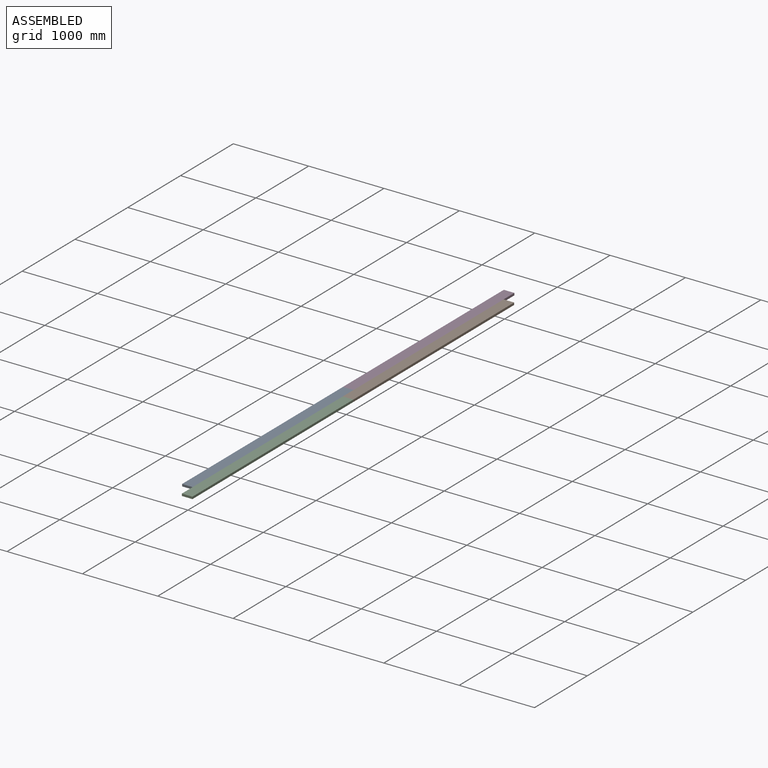
[diagram: assembled view]
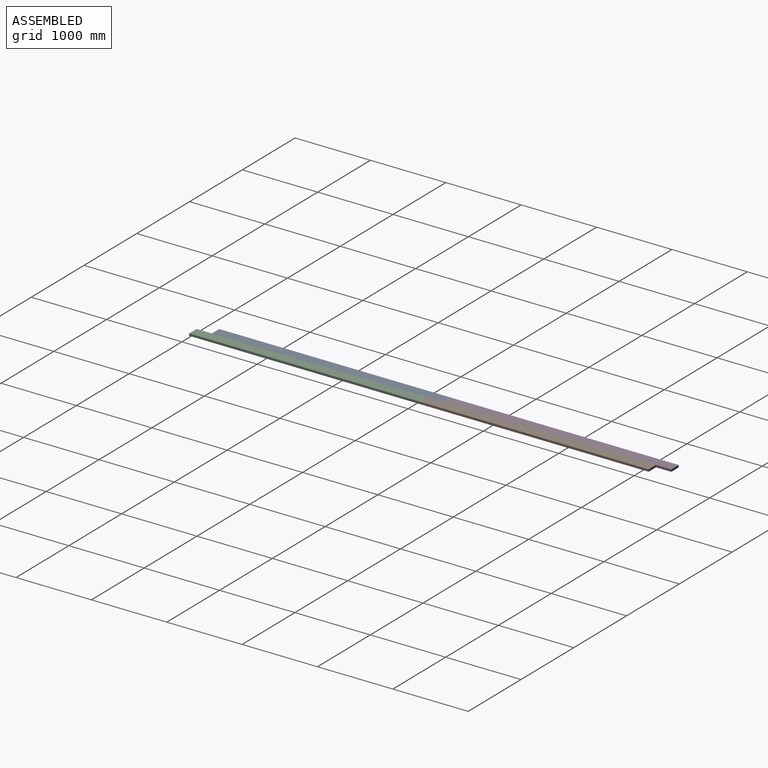
[diagram: assembled view, second angle]
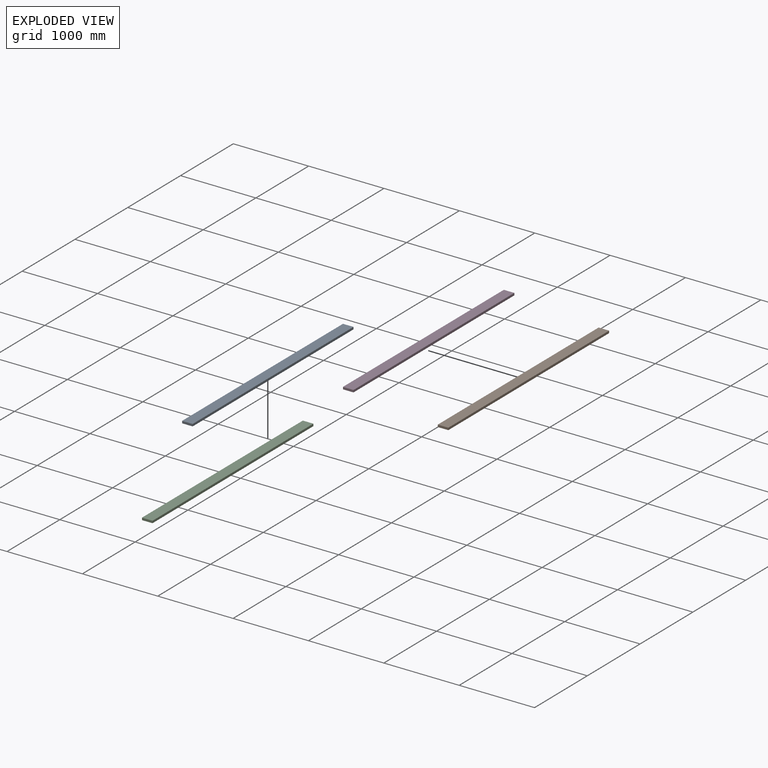
[diagram: exploded view]
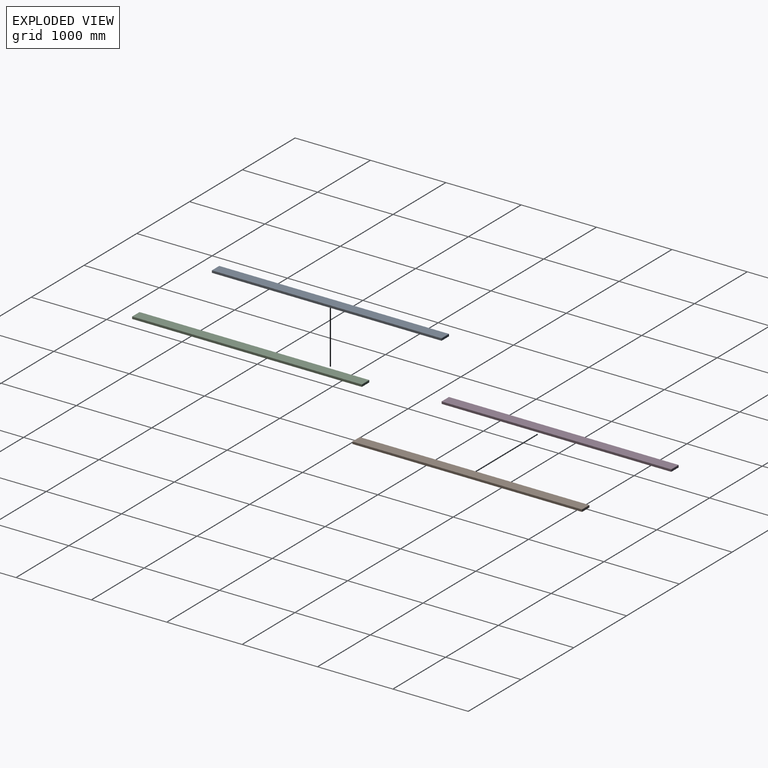
[diagram: exploded view, second angle]
ASSEMBLY  parts=4 mates=2
PART A: 6 faces, bbox 29.4x3048x139.7 mm
  f0: plane 3048x29.37mm, normal (0,0,1), area 89515.9mm2, adj f1,f3,f4,f5
  f1: plane 3048x139.7mm, normal (-1,0,0), area 425805.6mm2, adj f0,f2,f4,f5
  f2: plane 3048x29.37mm, normal (0,0,-1), area 89515.9mm2, adj f1,f3,f4,f5
  f3: plane 3048x139.7mm, normal (1,0,0), area 425805.6mm2, adj f0,f2,f4,f5
  f4: plane 139.7x29.37mm, normal (0,-1,0), area 4102.8mm2, adj f0,f1,f2,f3
  f5: plane 139.7x29.37mm, normal (0,1,0), area 4102.8mm2, adj f0,f1,f2,f3
PART B: same geometry as A
PART C: same geometry as A
PART D: same geometry as A
PLACE A rot(axis=(0,1,0),90deg) t=(-2285.15,-1655.81,-689.97)mm
PLACE B rot(axis=(0,1,0),90deg) t=(-2145.45,1188.99,-689.97)mm
PLACE C rot(axis=(0,1,0),90deg) t=(-2145.45,-1859.01,-689.97)mm
PLACE D rot(axis=(0,1,0),90deg) t=(-2285.15,1392.19,-689.97)mm
MATE fastened D.f4 <-> A.f5  axis (0,1,0) through (-2144.51,-1655.81,-673.26)mm
MATE fastened C.f5 <-> B.f4  axis (0,1,0) through (-2144.51,-1859.01,-702.63)mm
